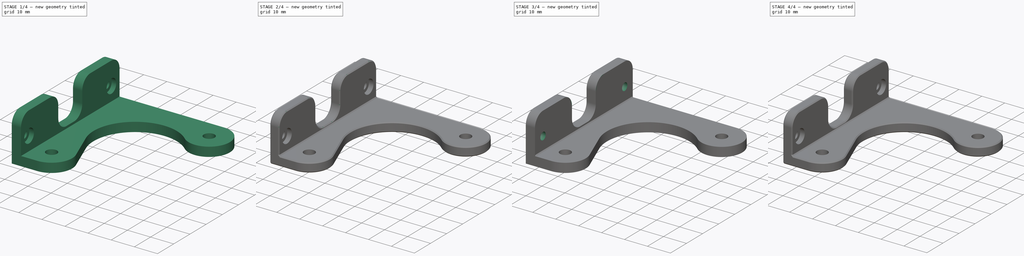
[diagram: build sequence overview — one tinted view per stage of 4, left to right]
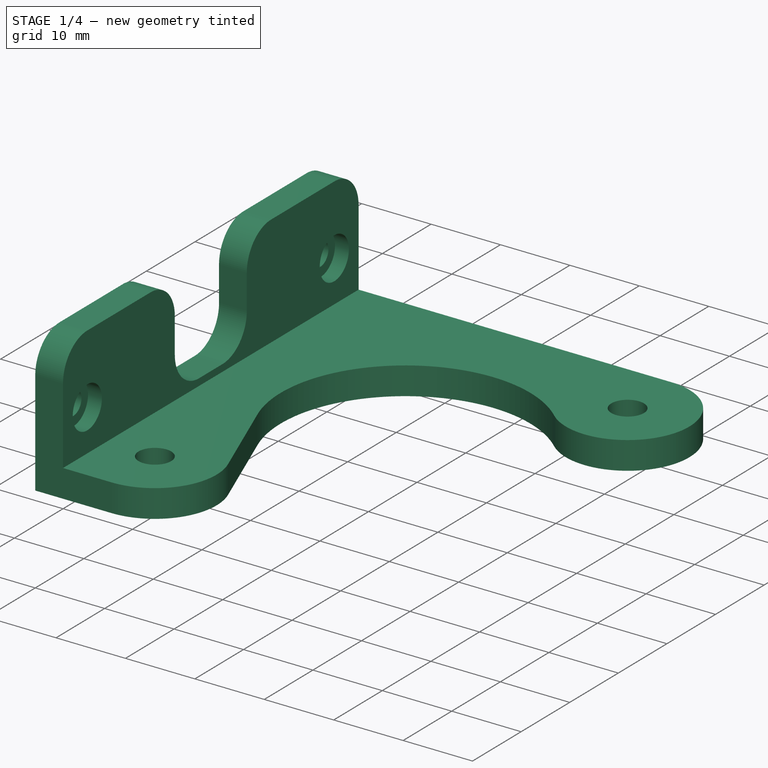
[diagram: stage 1 of 4 — iso view after this stage's code; geometry added in this stage tinted green]
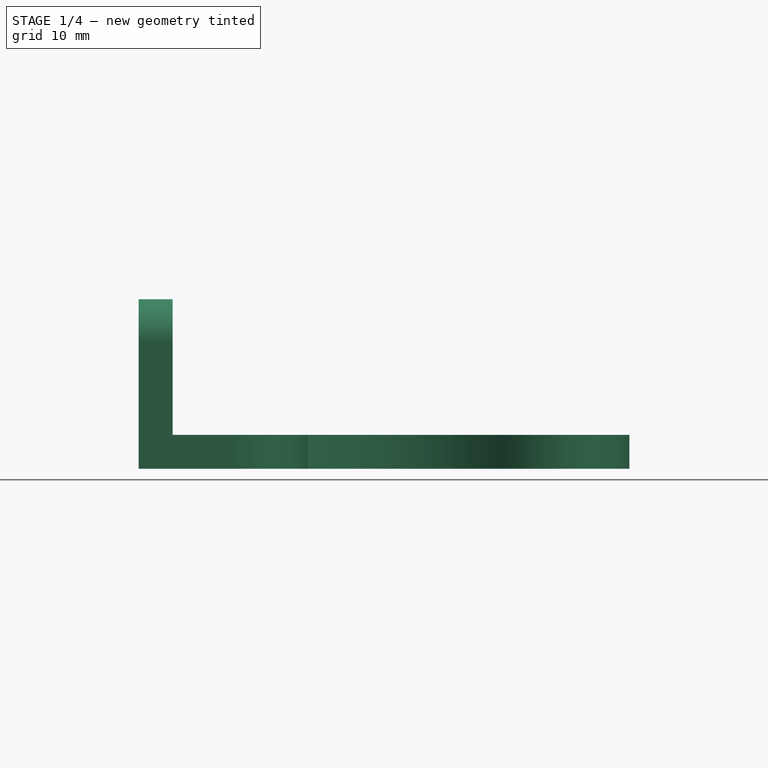
[diagram: stage 1 of 4 — front view after this stage's code; geometry added in this stage tinted green]
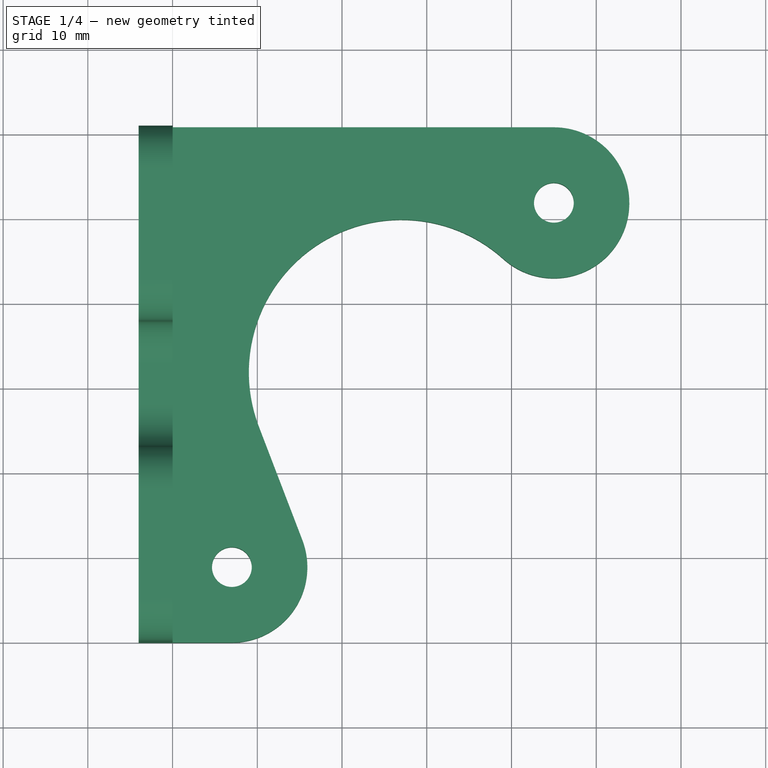
[diagram: stage 1 of 4 — top view after this stage's code; geometry added in this stage tinted green]
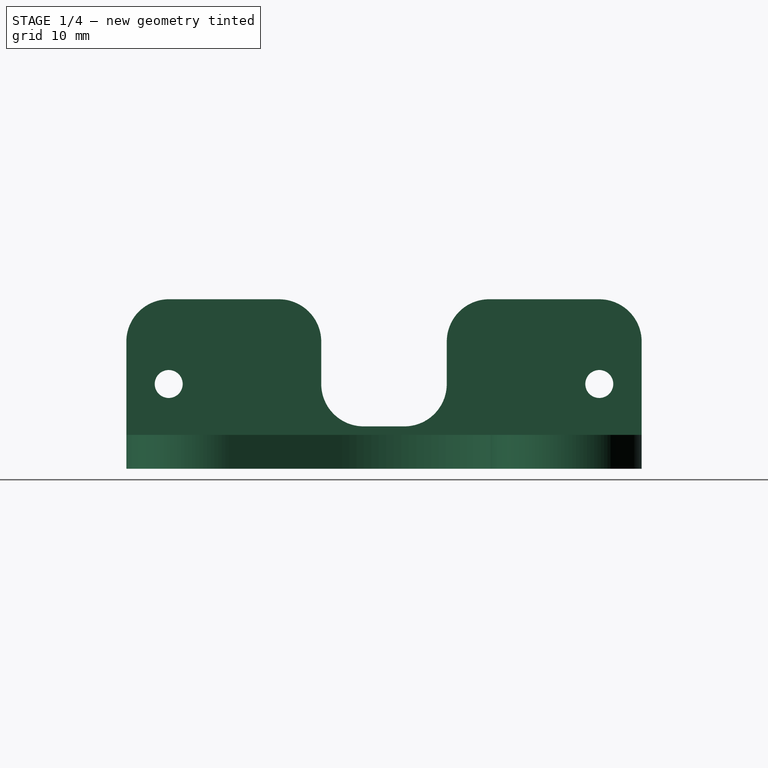
[diagram: stage 1 of 4 — right view after this stage's code; geometry added in this stage tinted green]
FCSTD DOCUMENT  (FreeCAD 1.1R20260414 (Git shallow))
Label: BedFanMount5020Blower
License: All rights reserved
LicenseURL: https://en.wikipedia.org/wiki/All_rights_reserved
objects: PartDesign::Pad×6, Sketcher::SketchObject×4, PartDesign::Pocket×4, PartDesign::Chamfer×4, App::Point×2, PartDesign::Body×2
note: 52 computed .brp shape members not serialized (recipe doc carries the construction recipe); baked Part::Feature solids carry a one-line shape summary decoded from their .brp

FEATURE [App::Point] Origin003
  Role = Origin
FEATURE [Sketcher::SketchObject] Sketch002  label="XYMasterSketch001"
  ArcFitTolerance = 1e-06
  AttachmentSupport = -> [Origin002]
  ExternalTypes = [0]
  FullyConstrained = true
  MakeInternals = false
  MapMode = 5
  _ExternalGeoVersion = 1
  sketch-geometry (9):
    g0: Circle CenterX=45 CenterY=51.9072 CenterZ=0 NormalX=0 NormalY=0 NormalZ=1 AngleXU=0 Radius=2.35
    g1: Circle CenterX=7 CenterY=8.90725 CenterZ=0 NormalX=0 NormalY=0 NormalZ=1 AngleXU=0 Radius=2.35
    g2: ArcOfCircle CenterX=45 CenterY=51.9072 CenterZ=0 NormalX=0 NormalY=0 NormalZ=1 AngleXU=0 Radius=8.90725 StartAngle=3.97957 EndAngle=7.85398
    g3: ArcOfCircle CenterX=7 CenterY=8.90725 CenterZ=0 NormalX=0 NormalY=0 NormalZ=1 AngleXU=0 Radius=8.90725 StartAngle=4.71239 EndAngle=6.64923
    g4: LineSegment StartX=45 StartY=60.8145 StartZ=0 EndX=0 EndY=60.8145 EndZ=0
    g5: LineSegment StartX=0 StartY=60.8145 StartZ=0 EndX=0 EndY=0 EndZ=0
    g6: ArcOfCircle CenterX=27 CenterY=31.9072 CenterZ=0 NormalX=0 NormalY=0 NormalZ=1 AngleXU=0 Radius=18 StartAngle=0.837981 EndAngle=3.50764
    g7: LineSegment StartX=10.1925 StartY=25.4646 StartZ=0 EndX=15.3172 EndY=12.0954 EndZ=0
    g8: LineSegment StartX=0 StartY=0 StartZ=0 EndX=7 EndY=0 EndZ=0
  constraints (22):
    c: Diameter(g0) = 4.7
    c: Equal(g0,g1)
    c: Coincident(g2,g0)
    c: Horizontal(g4)
    c: Coincident(g5,g4)
    c: Tangent(g4,g2) = -1.5708
    c: Radius(g6) = 18
    c: Tangent(g6,g2) = 1.5708
    c: Coincident(g3,g1)
    c: Tangent(g7,g6) = -1.5708
    c: Tangent(g7,g3) = 1.5708
    c: Equal(g2,g3)
    c: Coincident(g8,g5)
    c: Tangent(g8,g3) = -1.5708
    c: Vertical(g5)
    c: DistanceX(g6,g0) = 18
    c: DistanceY(g1,g6) = 23
    c: DistanceY(g6,g0) = 20
    c: DistanceX(g1,g6) = 20
    c: Horizontal(g8)
    c: Distance(g8,g8) = 7
    c: Coincident(g5,g-1)
FEATURE [PartDesign::Pad] Pad003  label="FanMountPad001"
  Direction = (0,0,1)
  Length = 4
  Length2 = 10
  Profile = -> Sketch002
  ReferenceAxis = -> Sketch002 [N_Axis]
  Refine = true
  SideType = 0
  Suppressed = false
  Type = 0
  Type2 = 0
FEATURE [Sketcher::SketchObject] Sketch003  label="YZMasterSketch001"
  ArcFitTolerance = 1e-06
  AttachmentSupport = -> [Origin002]
  ExternalGeometry = -> [Pad003]
  ExternalTypes = [0]
  FullyConstrained = true
  MakeInternals = false
  MapMode = 5
  Placement = pos=(0,0,0) rot=(0.57735,0.57735,0.57735;2.0944rad)
  _ExternalGeoVersion = 1
  sketch-geometry (33):
    g0: LineSegment StartX=0 StartY=0 StartZ=0 EndX=60.8145 EndY=0 EndZ=0
    g1: LineSegment StartX=60.8145 StartY=0 StartZ=0 EndX=60.8145 EndY=15 EndZ=0
    g2: LineSegment StartX=0 StartY=15 StartZ=0 EndX=0 EndY=0 EndZ=0
    g3: Circle CenterX=5 CenterY=10 CenterZ=0 NormalX=0 NormalY=0 NormalZ=1 AngleXU=0 Radius=1.65
    g4: LineSegment StartX=10 StartY=13.05 StartZ=0 EndX=10 EndY=6.95 EndZ=0
    g5: LineSegment StartX=10 StartY=6.95 StartZ=0 EndX=20 EndY=6.95 EndZ=0
    g6: LineSegment StartX=20 StartY=6.95 StartZ=0 EndX=20 EndY=13.05 EndZ=0
    g7: LineSegment StartX=20 StartY=13.05 StartZ=0 EndX=10 EndY=13.05 EndZ=0
    g8: LineSegment StartX=40.8145 StartY=13.05 StartZ=0 EndX=40.8145 EndY=6.95 EndZ=0
    g9: LineSegment StartX=40.8145 StartY=6.95 StartZ=0 EndX=50.8145 EndY=6.95 EndZ=0
    g10: LineSegment StartX=50.8145 StartY=6.95 StartZ=0 EndX=50.8145 EndY=13.05 EndZ=0
    g11: LineSegment StartX=50.8145 StartY=13.05 StartZ=0 EndX=40.8145 EndY=13.05 EndZ=0
    g12: Circle CenterX=5 CenterY=10 CenterZ=0 NormalX=0 NormalY=0 NormalZ=1 AngleXU=0 Radius=3
    g13: Circle CenterX=55.8145 CenterY=10 CenterZ=0 NormalX=0 NormalY=0 NormalZ=1 AngleXU=0 Radius=1.65
    g14: Circle CenterX=55.8145 CenterY=10 CenterZ=0 NormalX=0 NormalY=0 NormalZ=1 AngleXU=0 Radius=3
    g15: LineSegment [constr] StartX=5 StartY=10 StartZ=0 EndX=55.8145 EndY=10 EndZ=0
    g16: LineSegment StartX=5 StartY=20 StartZ=0 EndX=18 EndY=20 EndZ=0
    g17: LineSegment StartX=55.8145 StartY=20 StartZ=0 EndX=42.8145 EndY=20 EndZ=0
    g18: LineSegment StartX=37.8145 StartY=15 StartZ=0 EndX=37.8145 EndY=10 EndZ=0
    g19: LineSegment StartX=32.8145 StartY=5 StartZ=0 EndX=28 EndY=5 EndZ=0
    g20: LineSegment StartX=23 StartY=10 StartZ=0 EndX=23 EndY=15 EndZ=0
    g21: ArcOfCircle CenterX=5 CenterY=15 CenterZ=0 NormalX=0 NormalY=0 NormalZ=1 AngleXU=0 Radius=5 StartAngle=1.5708 EndAngle=3.14159
    g22: GeomPoint [constr] X=0 Y=20 Z=0
    g23: ArcOfCircle CenterX=18 CenterY=15 CenterZ=0 NormalX=0 NormalY=0 NormalZ=1 AngleXU=0 Radius=5 StartAngle=1e-16 EndAngle=1.5708
    g24: GeomPoint [constr] X=23 Y=20 Z=0
    g25: ArcOfCircle CenterX=42.8145 CenterY=15 CenterZ=0 NormalX=0 NormalY=0 NormalZ=1 AngleXU=0 Radius=5 StartAngle=1.5708 EndAngle=3.14159
    g26: GeomPoint [constr] X=37.8145 Y=20 Z=0
    g27: ArcOfCircle CenterX=55.8145 CenterY=15 CenterZ=0 NormalX=0 NormalY=0 NormalZ=1 AngleXU=0 Radius=5 StartAngle=2e-16 EndAngle=1.5708
    g28: GeomPoint [constr] X=60.8145 Y=20 Z=0
    g29: ArcOfCircle CenterX=28 CenterY=10 CenterZ=0 NormalX=0 NormalY=0 NormalZ=1 AngleXU=0 Radius=5 StartAngle=3.14159 EndAngle=4.71239
    g30: GeomPoint [constr] X=23 Y=5 Z=0
    g31: ArcOfCircle CenterX=32.8145 CenterY=10 CenterZ=0 NormalX=0 NormalY=0 NormalZ=1 AngleXU=0 Radius=5 StartAngle=4.71239 EndAngle=6.28319
    g32: GeomPoint [constr] X=37.8145 Y=5 Z=0
  constraints (81):
    c: Coincident(g0,g1)
    c: Coincident(g2,g0)
    c: Vertical(g1)
    c: Vertical(g2)
    c: Coincident(g0,g-1)
    c: DistanceY(g2,g22) = 20
    c: Coincident(g0,g-3)
    c: Diameter(g3) = 3.3
    c: Coincident(g4,g5)
    c: Coincident(g5,g6)
    c: Coincident(g6,g7)
    c: Coincident(g7,g4)
    c: Vertical(g6)
    c: Horizontal(g5)
    c: Horizontal(g7)
    c: Coincident(g8,g9)
    c: Coincident(g9,g10)
    c: Coincident(g10,g11)
    c: Coincident(g11,g8)
    c: Vertical(g8)
    c: Vertical(g10)
    c: Horizontal(g9)
    c: Horizontal(g11)
    c: Equal(g5,g9)
    c: Equal(g6,g8)
    c: Distance(g4,g4) = 6.1
    c: Horizontal(g6,g8)
    c: Coincident(g12,g3)
    c: Diameter(g12) = 6
    c: Coincident(g14,g13)
    c: Equal(g13,g3)
    c: Equal(g12,g14)
    c: DistanceX(g0,g3) = 5
    c: DistanceX(g13,g0) = 5
    c: Coincident(g15,g3)
    c: Coincident(g15,g13)
    c: Horizontal(g15)
    c: Distance(g3,g0) = 10
    c: Symmetric(g4,g4,g15)
    c: Distance(g3,g4) = 5
    c: DistanceX(g9,g13) = 5
    c: DistanceX(g7,g7) = 10
    c: Horizontal(g16)
    c: Horizontal(g17)
    c: Vertical(g18)
    c: Horizontal(g19)
    c: Vertical(g20)
    c: Distance(g0,g19) = 5
    c: Horizontal(g24,g26)
    c: PointOnObject(g22,g2)
    c: PointOnObject(g22,g16)
    c: Tangent(g2,g21) = -1.5708
    c: Tangent(g16,g21) = 1.5708
    c: PointOnObject(g24,g16)
    c: PointOnObject(g24,g20)
    c: Tangent(g16,g23) = 1.5708
    c: Tangent(g20,g23) = -1.5708
    c: PointOnObject(g26,g17)
    c: PointOnObject(g26,g18)
    c: Tangent(g17,g25) = -1.5708
    c: Tangent(g18,g25) = -1.5708
    c: PointOnObject(g28,g17)
    c: PointOnObject(g28,g1)
    c: Tangent(g17,g27) = -1.5708
    c: Tangent(g1,g27) = -1.5708
    c: Radius(g27) = 5
    c: Equal(g27,g25)
    c: Equal(g25,g23)
    c: Equal(g23,g21)
    c: Equal(g16,g17)
    c: PointOnObject(g30,g20)
    c: PointOnObject(g30,g19)
    c: Tangent(g20,g29) = 1.5708
    c: Tangent(g19,g29) = 1.5708
    c: PointOnObject(g32,g19)
    c: PointOnObject(g32,g18)
    c: Tangent(g19,g31) = 1.5708
    c: Tangent(g18,g31) = 1.5708
    c: Equal(g21,g29)
    c: Equal(g29,g31)
    c: DistanceX(g18,g8) = 3
FEATURE [PartDesign::Pad] Pad004  label="ExtrusionMountPad001"
  BaseFeature = -> Pad003
  Direction = (1,0,0)
  Length = 4
  Length2 = 10
  Profile = -> Sketch003 [Edge3,Edge2,Edge1,Edge14,Edge13,Edge12,Edge11,Edge10,Edge9,Edge8,Edge7,Edge6,Edge5,Edge4]
  ReferenceAxis = -> Sketch003 [N_Axis]
  Refine = true
  Reversed = true
  SideType = 0
  Suppressed = false
  Type = 0
  Type2 = 0
FEATURE [PartDesign::Pocket] Pocket002  label="MountHolesPocket001"
  BaseFeature = -> Pad004
  Direction = (-1,0,0)
  Length = 5
  Length2 = 5
  Profile = -> Sketch003 [Edge15,Edge25]
  ReferenceAxis = -> Sketch003 [N_Axis]
  Refine = true
  SideType = 0
  Suppressed = false
  Type = 1
  Type2 = 0
FEATURE [PartDesign::Pocket] Pocket003  label="MountHolesCounterborePocket001"
  BaseFeature = -> Pocket002
  Direction = (-1,0,0)
  Length = 2
  Length2 = 5
  Profile = -> Sketch003 [Edge24,Edge26]
  ReferenceAxis = -> Sketch003 [N_Axis]
  Refine = true
  SideType = 0
  Suppressed = false
  Type = 0
  Type2 = 0
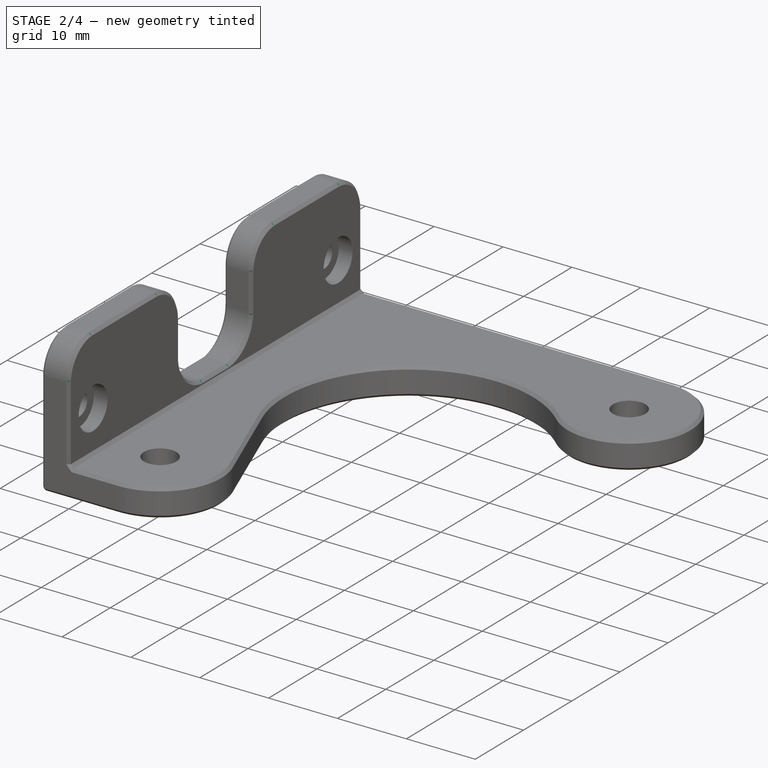
[diagram: stage 2 of 4 — iso view after this stage's code; geometry added in this stage tinted green]
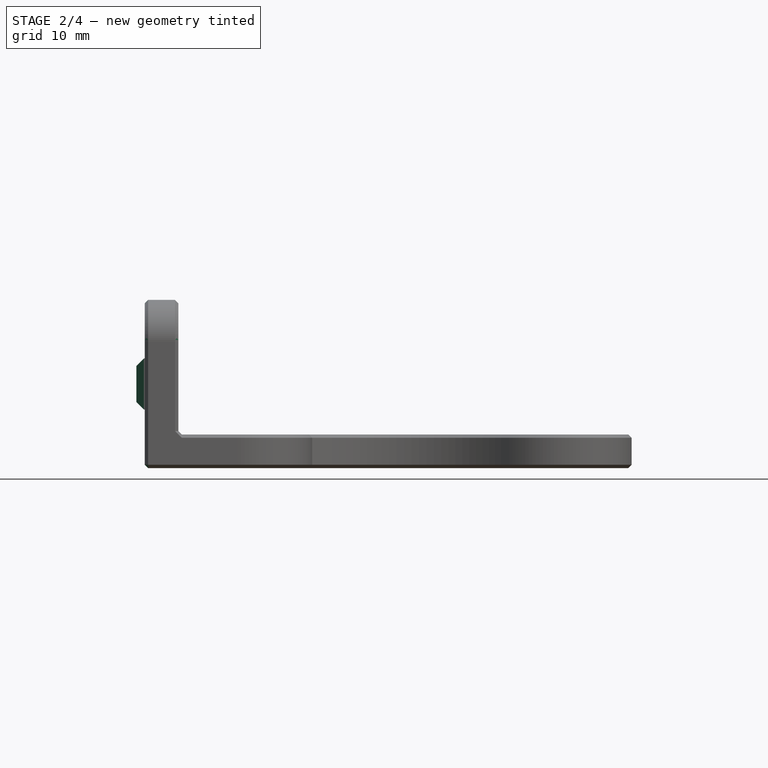
[diagram: stage 2 of 4 — front view after this stage's code; geometry added in this stage tinted green]
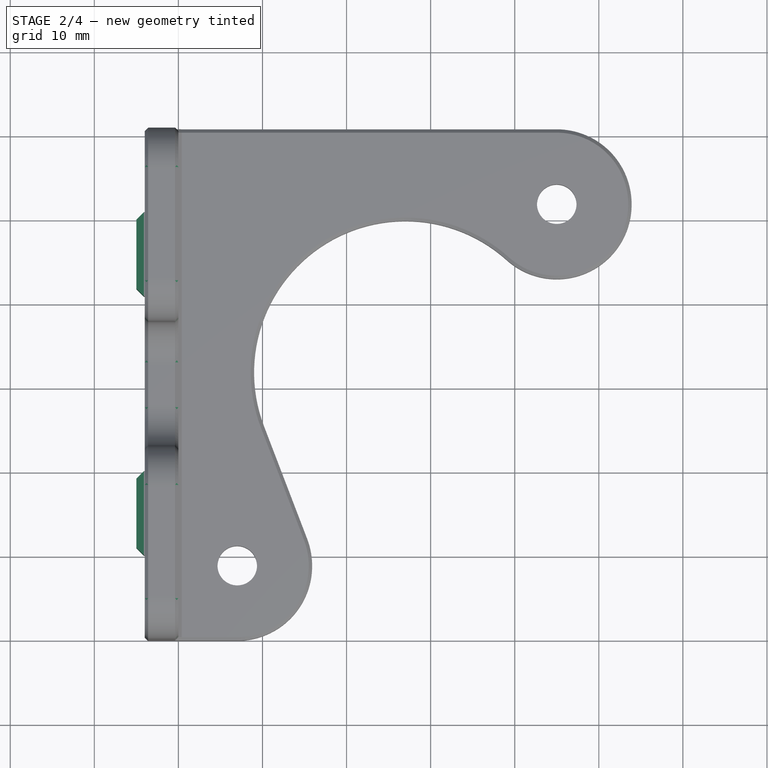
[diagram: stage 2 of 4 — top view after this stage's code; geometry added in this stage tinted green]
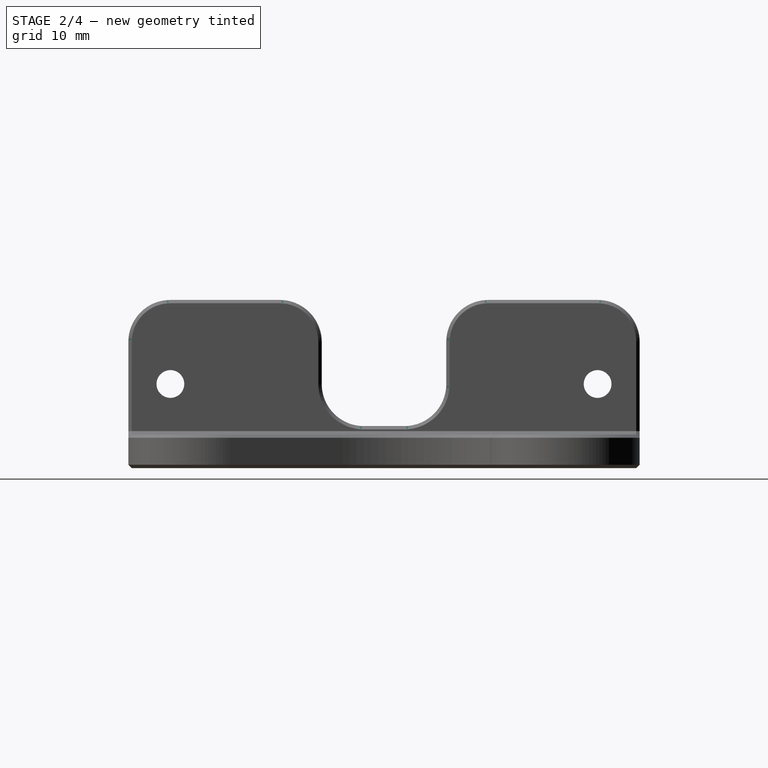
[diagram: stage 2 of 4 — right view after this stage's code; geometry added in this stage tinted green]
FEATURE [PartDesign::Pad] Pad005  label="VSlotAlignmentPad001"
  BaseFeature = -> Pocket003
  Direction = (1,0,0)
  Length = 5
  Length2 = 10
  Profile = -> Sketch003 [Edge19,Edge18,Edge17,Edge16,Edge23,Edge22,Edge21,Edge20]
  ReferenceAxis = -> Sketch003 [N_Axis]
  Refine = true
  Reversed = true
  SideType = 0
  Suppressed = false
  Type = 0
  Type2 = 0
FEATURE [PartDesign::Chamfer] Chamfer001  label="VSlotAlignmentChamfer001"
  Angle = 45
  Base = -> Pad005 [Edge93,Edge96,Edge98,Edge99,Edge84,Edge87,Edge89,Edge90]
  BaseFeature = -> Pad005
  ChamferType = 0
  FlipDirection = false
  Refine = true
  Size = 0.9
  Size2 = 1
  SupportTransform = false
  Suppressed = false
  UseAllEdges = false
FEATURE [PartDesign::Body] Body  label="VSlot"
  AllowCompound = true
  Group = -> [Sketch,Pad,Sketch001,Pad001,Pocket,Pocket001,Pad002,Chamfer,Chamfer002]
  Origin = -> Origin
  Tip = -> Chamfer002
FEATURE [PartDesign::Chamfer] Chamfer003  label="FinishingChamfer001"
  Angle = 45
  Base = -> Chamfer001 [Edge46,Edge11,Edge47,Edge48,Edge56,Edge51,Edge101,Edge12]
  BaseFeature = -> Chamfer001
  ChamferType = 0
  FlipDirection = false
  Refine = true
  Size = 0.4
  Size2 = 1
  SupportTransform = false
  Suppressed = false
  UseAllEdges = false
FEATURE [PartDesign::Body] Body001  label="Misumi"
  AllowCompound = true
  Group = -> [Sketch002,Pad003,Sketch003,Pad004,Pocket002,Pocket003,Pad005,Chamfer001,Chamfer003]
  Origin = -> Origin002
  Placement = pos=(0,65,0) rot=(0,0,1;0rad)
  Tip = -> Chamfer003
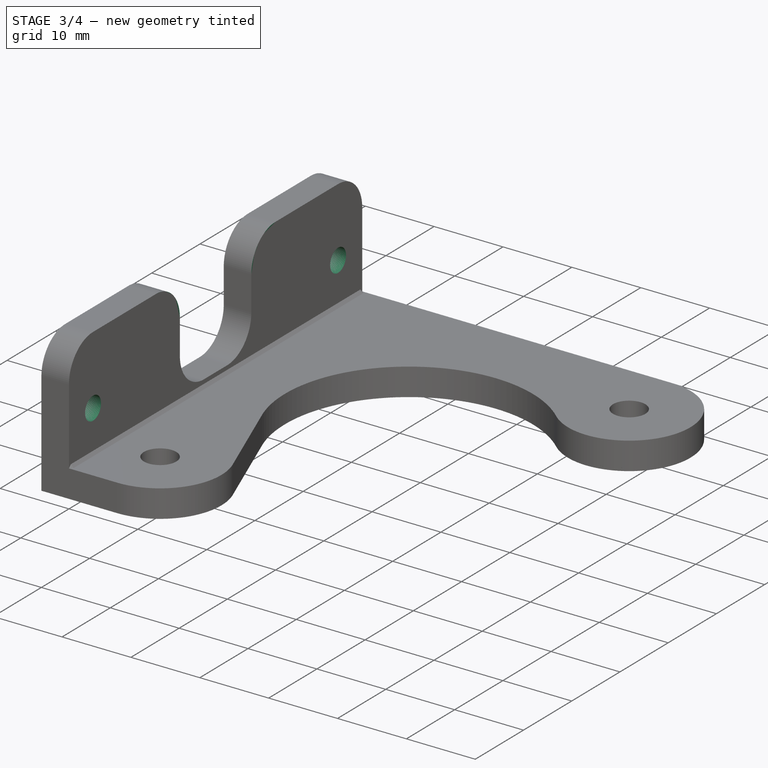
[diagram: stage 3 of 4 — iso view after this stage's code; geometry added in this stage tinted green]
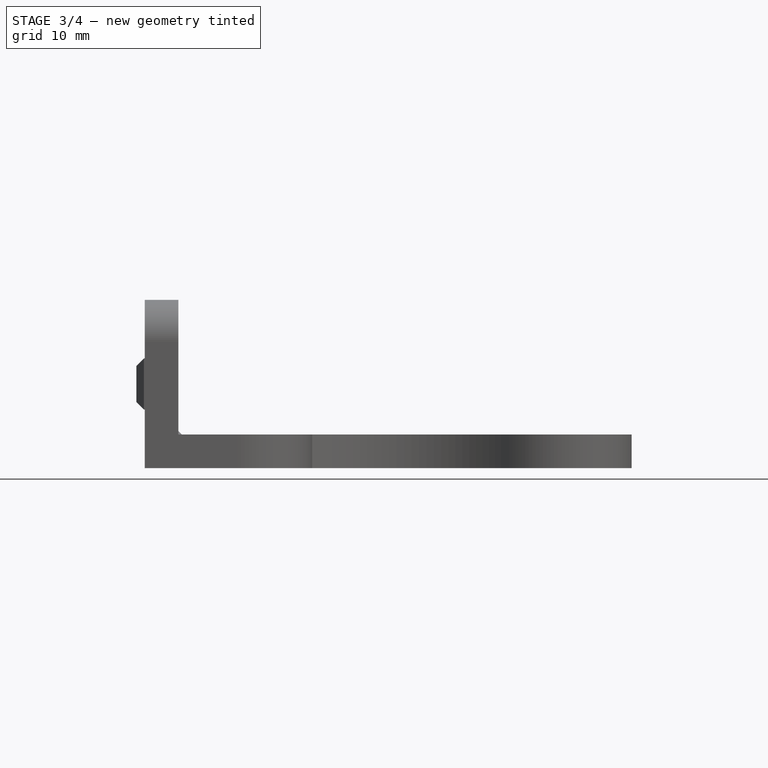
[diagram: stage 3 of 4 — front view after this stage's code; geometry added in this stage tinted green]
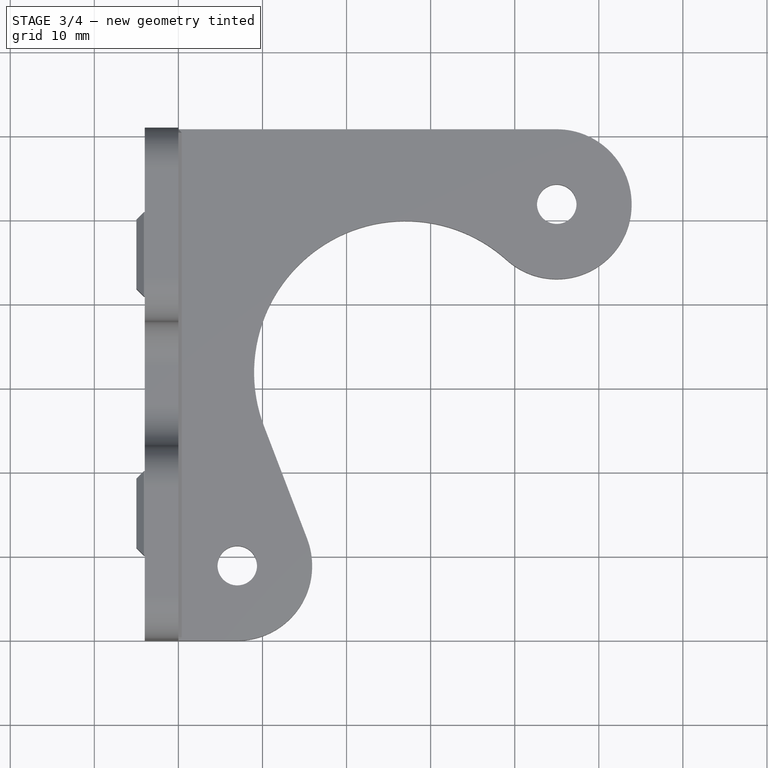
[diagram: stage 3 of 4 — top view after this stage's code; geometry added in this stage tinted green]
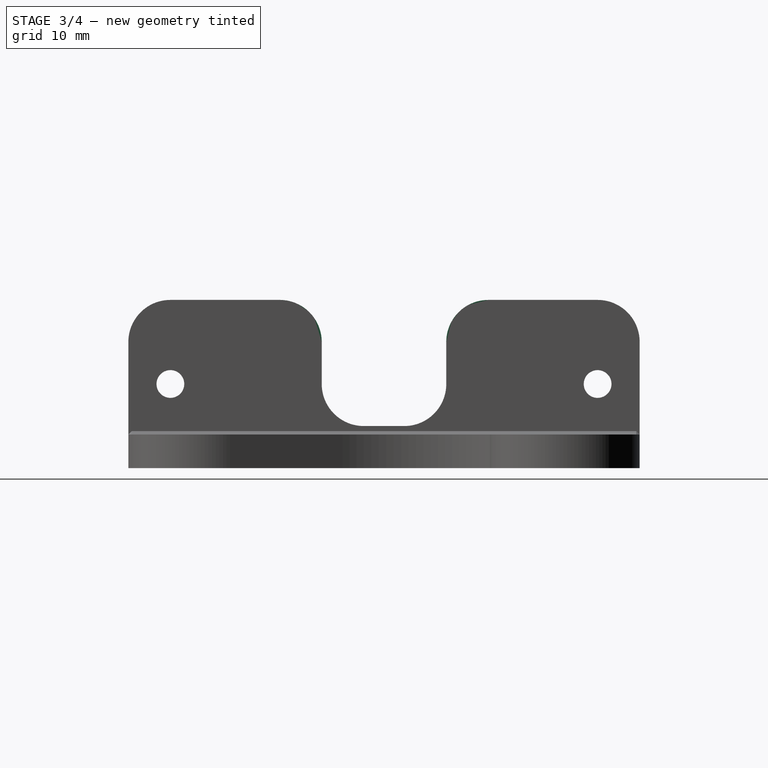
[diagram: stage 3 of 4 — right view after this stage's code; geometry added in this stage tinted green]
FEATURE [App::Point] Origin001
  Role = Origin
FEATURE [Sketcher::SketchObject] Sketch  label="XYMasterSketch"
  ArcFitTolerance = 1e-06
  AttachmentSupport = -> [Origin]
  ExternalTypes = [0]
  FullyConstrained = true
  MakeInternals = false
  MapMode = 5
  _ExternalGeoVersion = 1
  sketch-geometry (9):
    g0: Circle CenterX=45 CenterY=51.9072 CenterZ=0 NormalX=0 NormalY=0 NormalZ=1 AngleXU=0 Radius=2.35
    g1: Circle CenterX=7 CenterY=8.90725 CenterZ=0 NormalX=0 NormalY=0 NormalZ=1 AngleXU=0 Radius=2.35
    g2: ArcOfCircle CenterX=45 CenterY=51.9072 CenterZ=0 NormalX=0 NormalY=0 NormalZ=1 AngleXU=0 Radius=8.90725 StartAngle=3.97957 EndAngle=7.85398
    g3: ArcOfCircle CenterX=7 CenterY=8.90725 CenterZ=0 NormalX=0 NormalY=0 NormalZ=1 AngleXU=0 Radius=8.90725 StartAngle=4.71239 EndAngle=6.64923
    g4: LineSegment StartX=45 StartY=60.8145 StartZ=0 EndX=0 EndY=60.8145 EndZ=0
    g5: LineSegment StartX=0 StartY=60.8145 StartZ=0 EndX=0 EndY=0 EndZ=0
    g6: ArcOfCircle CenterX=27 CenterY=31.9072 CenterZ=0 NormalX=0 NormalY=0 NormalZ=1 AngleXU=0 Radius=18 StartAngle=0.837981 EndAngle=3.50764
    g7: LineSegment StartX=10.1925 StartY=25.4646 StartZ=0 EndX=15.3172 EndY=12.0954 EndZ=0
    g8: LineSegment StartX=0 StartY=0 StartZ=0 EndX=7 EndY=0 EndZ=0
  constraints (22):
    c: Diameter(g0) = 4.7
    c: Equal(g0,g1)
    c: Coincident(g2,g0)
    c: Horizontal(g4)
    c: Coincident(g5,g4)
    c: Tangent(g4,g2) = -1.5708
    c: Radius(g6) = 18
    c: Tangent(g6,g2) = 1.5708
    c: Coincident(g3,g1)
    c: Tangent(g7,g6) = -1.5708
    c: Tangent(g7,g3) = 1.5708
    c: Equal(g2,g3)
    c: Coincident(g8,g5)
    c: Tangent(g8,g3) = -1.5708
    c: Vertical(g5)
    c: DistanceX(g6,g0) = 18
    c: DistanceY(g1,g6) = 23
    c: DistanceY(g6,g0) = 20
    c: DistanceX(g1,g6) = 20
    c: Horizontal(g8)
    c: Distance(g8,g8) = 7
    c: Coincident(g5,g-1)
FEATURE [PartDesign::Pad] Pad  label="FanMountPad"
  Direction = (0,0,1)
  Length = 4
  Length2 = 10
  Profile = -> Sketch
  ReferenceAxis = -> Sketch [N_Axis]
  Refine = true
  SideType = 0
  Suppressed = false
  Type = 0
  Type2 = 0
FEATURE [Sketcher::SketchObject] Sketch001  label="YZMasterSketch"
  ArcFitTolerance = 1e-06
  AttachmentSupport = -> [Origin]
  ExternalGeometry = -> [Pad]
  ExternalTypes = [0]
  FullyConstrained = true
  MakeInternals = false
  MapMode = 5
  Placement = pos=(0,0,0) rot=(0.57735,0.57735,0.57735;2.0944rad)
  _ExternalGeoVersion = 1
  sketch-geometry (33):
    g0: LineSegment StartX=0 StartY=0 StartZ=0 EndX=60.8145 EndY=0 EndZ=0
    g1: LineSegment StartX=60.8145 StartY=0 StartZ=0 EndX=60.8145 EndY=15 EndZ=0
    g2: LineSegment StartX=0 StartY=15 StartZ=0 EndX=0 EndY=0 EndZ=0
    g3: Circle CenterX=5 CenterY=10 CenterZ=0 NormalX=0 NormalY=0 NormalZ=1 AngleXU=0 Radius=1.65
    g4: LineSegment StartX=10 StartY=14.2 StartZ=0 EndX=10 EndY=5.8 EndZ=0
    g5: LineSegment StartX=10 StartY=5.8 StartZ=0 EndX=20 EndY=5.8 EndZ=0
    g6: LineSegment StartX=20 StartY=5.8 StartZ=0 EndX=20 EndY=14.2 EndZ=0
    g7: LineSegment StartX=20 StartY=14.2 StartZ=0 EndX=10 EndY=14.2 EndZ=0
    g8: LineSegment StartX=40.8145 StartY=14.2 StartZ=0 EndX=40.8145 EndY=5.8 EndZ=0
    g9: LineSegment StartX=40.8145 StartY=5.8 StartZ=0 EndX=50.8145 EndY=5.8 EndZ=0
    g10: LineSegment StartX=50.8145 StartY=5.8 StartZ=0 EndX=50.8145 EndY=14.2 EndZ=0
    g11: LineSegment StartX=50.8145 StartY=14.2 StartZ=0 EndX=40.8145 EndY=14.2 EndZ=0
    g12: Circle CenterX=5 CenterY=10 CenterZ=0 NormalX=0 NormalY=0 NormalZ=1 AngleXU=0 Radius=3
    g13: Circle CenterX=55.8145 CenterY=10 CenterZ=0 NormalX=0 NormalY=0 NormalZ=1 AngleXU=0 Radius=1.65
    g14: Circle CenterX=55.8145 CenterY=10 CenterZ=0 NormalX=0 NormalY=0 NormalZ=1 AngleXU=0 Radius=3
    g15: LineSegment [constr] StartX=5 StartY=10 StartZ=0 EndX=55.8145 EndY=10 EndZ=0
    g16: LineSegment StartX=5 StartY=20 StartZ=0 EndX=18 EndY=20 EndZ=0
    g17: LineSegment StartX=55.8145 StartY=20 StartZ=0 EndX=42.8145 EndY=20 EndZ=0
    g18: LineSegment StartX=37.8145 StartY=15 StartZ=0 EndX=37.8145 EndY=10 EndZ=0
    g19: LineSegment StartX=32.8145 StartY=5 StartZ=0 EndX=28 EndY=5 EndZ=0
    g20: LineSegment StartX=23 StartY=10 StartZ=0 EndX=23 EndY=15 EndZ=0
    g21: ArcOfCircle CenterX=5 CenterY=15 CenterZ=0 NormalX=0 NormalY=0 NormalZ=1 AngleXU=0 Radius=5 StartAngle=1.5708 EndAngle=3.14159
    g22: GeomPoint [constr] X=0 Y=20 Z=0
    g23: ArcOfCircle CenterX=18 CenterY=15 CenterZ=0 NormalX=0 NormalY=0 NormalZ=1 AngleXU=0 Radius=5 StartAngle=1e-16 EndAngle=1.5708
    g24: GeomPoint [constr] X=23 Y=20 Z=0
    g25: ArcOfCircle CenterX=42.8145 CenterY=15 CenterZ=0 NormalX=0 NormalY=0 NormalZ=1 AngleXU=0 Radius=5 StartAngle=1.5708 EndAngle=3.14159
    g26: GeomPoint [constr] X=37.8145 Y=20 Z=0
    g27: ArcOfCircle CenterX=55.8145 CenterY=15 CenterZ=0 NormalX=0 NormalY=0 NormalZ=1 AngleXU=0 Radius=5 StartAngle=1e-16 EndAngle=1.5708
    g28: GeomPoint [constr] X=60.8145 Y=20 Z=0
    g29: ArcOfCircle CenterX=28 CenterY=10 CenterZ=0 NormalX=0 NormalY=0 NormalZ=1 AngleXU=0 Radius=5 StartAngle=3.14159 EndAngle=4.71239
    g30: GeomPoint [constr] X=23 Y=5 Z=0
    g31: ArcOfCircle CenterX=32.8145 CenterY=10 CenterZ=0 NormalX=0 NormalY=0 NormalZ=1 AngleXU=0 Radius=5 StartAngle=4.71239 EndAngle=6.28319
    g32: GeomPoint [constr] X=37.8145 Y=5 Z=0
  constraints (81):
    c: Coincident(g0,g1)
    c: Coincident(g2,g0)
    c: Vertical(g1)
    c: Vertical(g2)
    c: Coincident(g0,g-1)
    c: DistanceY(g2,g22) = 20
    c: Coincident(g0,g-3)
    c: Diameter(g3) = 3.3
    c: Coincident(g4,g5)
    c: Coincident(g5,g6)
    c: Coincident(g6,g7)
    c: Coincident(g7,g4)
    c: Vertical(g6)
    c: Horizontal(g5)
    c: Horizontal(g7)
    c: Coincident(g8,g9)
    c: Coincident(g9,g10)
    c: Coincident(g10,g11)
    c: Coincident(g11,g8)
    c: Vertical(g8)
    c: Vertical(g10)
    c: Horizontal(g9)
    c: Horizontal(g11)
    c: Equal(g5,g9)
    c: Equal(g6,g8)
    c: Distance(g4,g4) = 8.4
    c: Horizontal(g6,g8)
    c: Coincident(g12,g3)
    c: Diameter(g12) = 6
    c: Coincident(g14,g13)
    c: Equal(g13,g3)
    c: Equal(g12,g14)
    c: DistanceX(g0,g3) = 5
    c: DistanceX(g13,g0) = 5
    c: Coincident(g15,g3)
    c: Coincident(g15,g13)
    c: Horizontal(g15)
    c: Distance(g3,g0) = 10
    c: Symmetric(g4,g4,g15)
    c: Distance(g3,g4) = 5
    c: DistanceX(g9,g13) = 5
    c: DistanceX(g7,g7) = 10
    c: Horizontal(g16)
    c: Horizontal(g17)
    c: Vertical(g18)
    c: Horizontal(g19)
    c: Vertical(g20)
    c: Distance(g0,g19) = 5
    c: Horizontal(g24,g26)
    c: PointOnObject(g22,g2)
    c: PointOnObject(g22,g16)
    c: Tangent(g2,g21) = -1.5708
    c: Tangent(g16,g21) = 1.5708
    c: PointOnObject(g24,g16)
    c: PointOnObject(g24,g20)
    c: Tangent(g16,g23) = 1.5708
    c: Tangent(g20,g23) = -1.5708
    c: PointOnObject(g26,g17)
    c: PointOnObject(g26,g18)
    c: Tangent(g17,g25) = -1.5708
    c: Tangent(g18,g25) = -1.5708
    c: PointOnObject(g28,g17)
    c: PointOnObject(g28,g1)
    c: Tangent(g17,g27) = -1.5708
    c: Tangent(g1,g27) = -1.5708
    c: Radius(g27) = 5
    c: Equal(g27,g25)
    c: Equal(g25,g23)
    c: Equal(g23,g21)
    c: Equal(g16,g17)
    c: PointOnObject(g30,g20)
    c: PointOnObject(g30,g19)
    c: Tangent(g20,g29) = 1.5708
    c: Tangent(g19,g29) = 1.5708
    c: PointOnObject(g32,g19)
    c: PointOnObject(g32,g18)
    c: Tangent(g19,g31) = 1.5708
    c: Tangent(g18,g31) = 1.5708
    c: Equal(g21,g29)
    c: Equal(g29,g31)
    c: DistanceX(g18,g8) = 3
FEATURE [PartDesign::Pad] Pad001  label="ExtrusionMountPad"
  BaseFeature = -> Pad
  Direction = (1,0,0)
  Length = 4
  Length2 = 10
  Profile = -> Sketch001 [Edge3,Edge2,Edge1,Edge14,Edge13,Edge12,Edge11,Edge10,Edge9,Edge8,Edge7,Edge6,Edge5,Edge4]
  ReferenceAxis = -> Sketch001 [N_Axis]
  Refine = true
  Reversed = true
  SideType = 0
  Suppressed = false
  Type = 0
  Type2 = 0
FEATURE [PartDesign::Pocket] Pocket  label="MountHolesPocket"
  BaseFeature = -> Pad001
  Direction = (-1,0,0)
  Length = 5
  Length2 = 5
  Profile = -> Sketch001 [Edge15,Edge25]
  ReferenceAxis = -> Sketch001 [N_Axis]
  Refine = true
  SideType = 0
  Suppressed = false
  Type = 1
  Type2 = 0
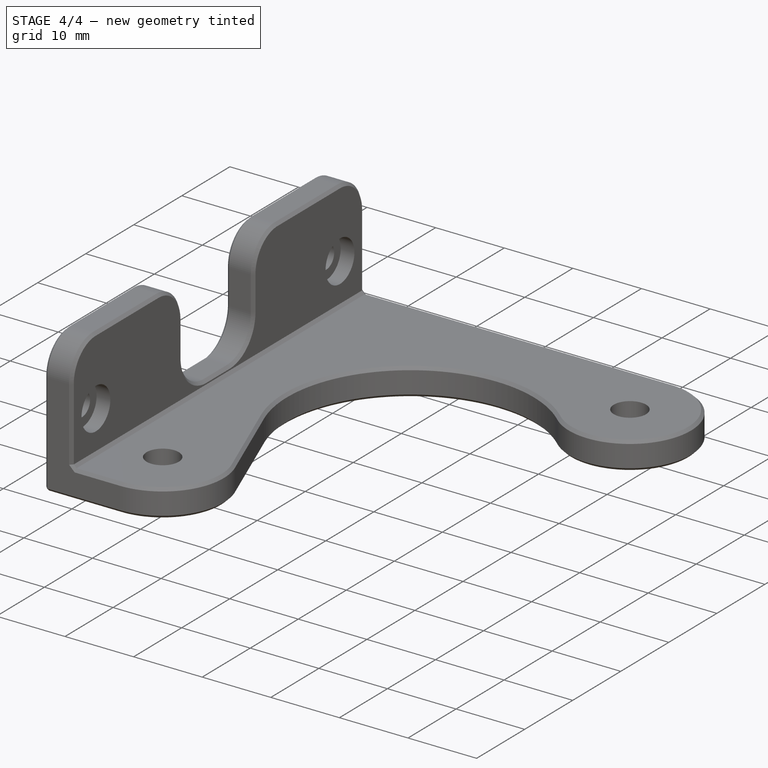
[diagram: stage 4 of 4 — iso view after this stage's code; geometry added in this stage tinted green]
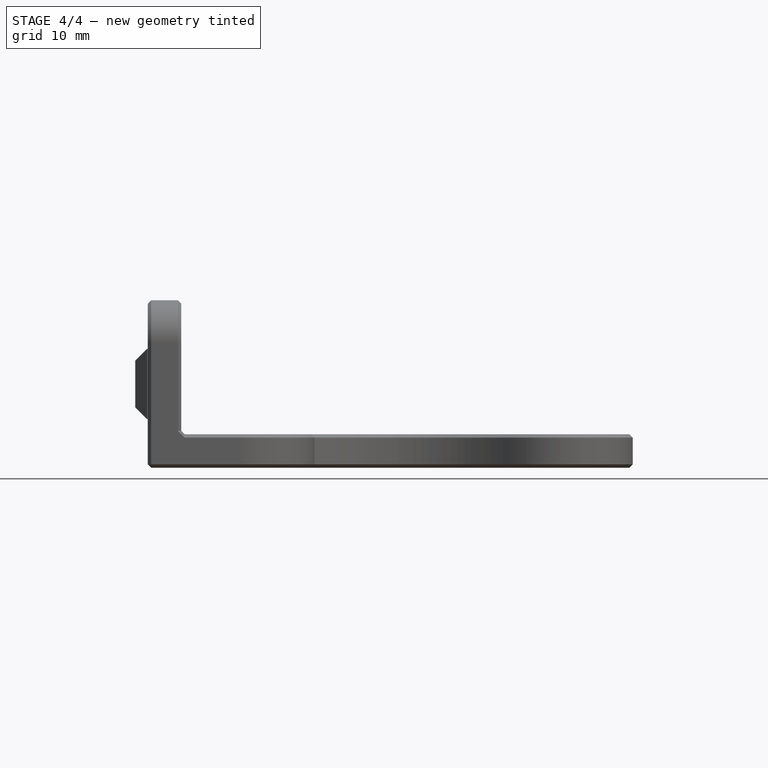
[diagram: stage 4 of 4 — front view after this stage's code; geometry added in this stage tinted green]
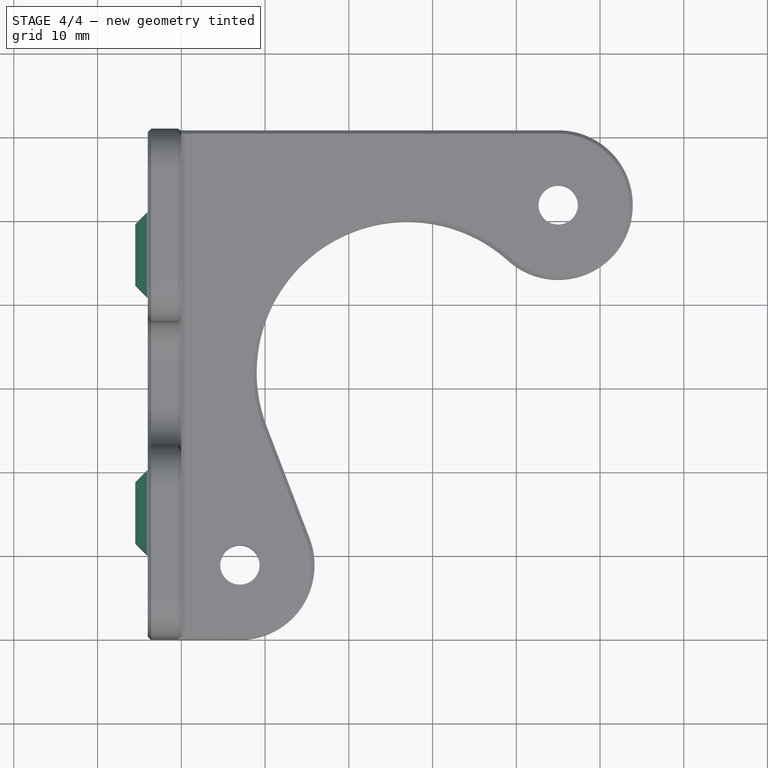
[diagram: stage 4 of 4 — top view after this stage's code; geometry added in this stage tinted green]
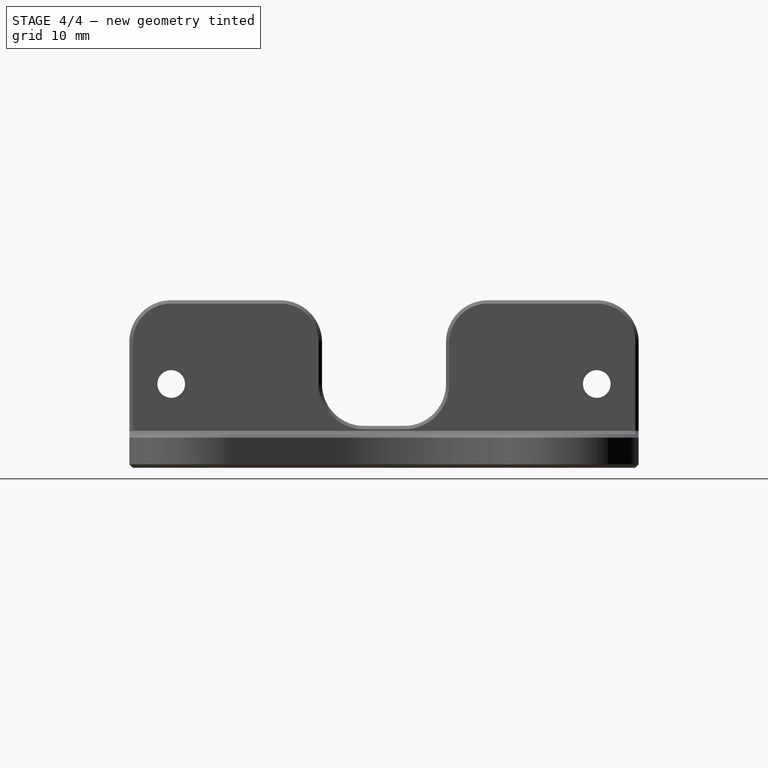
[diagram: stage 4 of 4 — right view after this stage's code; geometry added in this stage tinted green]
FEATURE [PartDesign::Pocket] Pocket001  label="MountHolesCounterborePocket"
  BaseFeature = -> Pocket
  Direction = (-1,0,0)
  Length = 2
  Length2 = 5
  Profile = -> Sketch001 [Edge24,Edge26]
  ReferenceAxis = -> Sketch001 [N_Axis]
  Refine = true
  SideType = 0
  Suppressed = false
  Type = 0
  Type2 = 0
FEATURE [PartDesign::Pad] Pad002  label="VSlotAlignmentPad"
  BaseFeature = -> Pocket001
  Direction = (1,0,0)
  Length = 5.5
  Length2 = 10
  Profile = -> Sketch001 [Edge19,Edge18,Edge17,Edge16,Edge23,Edge22,Edge21,Edge20]
  ReferenceAxis = -> Sketch001 [N_Axis]
  Refine = true
  Reversed = true
  SideType = 0
  Suppressed = false
  Type = 0
  Type2 = 0
FEATURE [PartDesign::Chamfer] Chamfer  label="VSlotAlignmentChamfer"
  Angle = 45
  Base = -> Pad002 [Edge92,Edge95,Edge97,Edge98,Edge84,Edge87,Edge89,Edge90]
  BaseFeature = -> Pad002
  ChamferType = 0
  FlipDirection = false
  Refine = true
  Size = 1.4
  Size2 = 1
  SupportTransform = false
  Suppressed = false
  UseAllEdges = false
FEATURE [PartDesign::Chamfer] Chamfer002  label="FinishingChamfer"
  Angle = 45
  Base = -> Chamfer [Edge46,Edge11,Edge47,Edge48,Edge56,Edge100,Edge98,Edge51,Edge101,Edge12]
  BaseFeature = -> Chamfer
  ChamferType = 0
  FlipDirection = false
  Refine = true
  Size = 0.4
  Size2 = 1
  SupportTransform = false
  Suppressed = false
  UseAllEdges = false
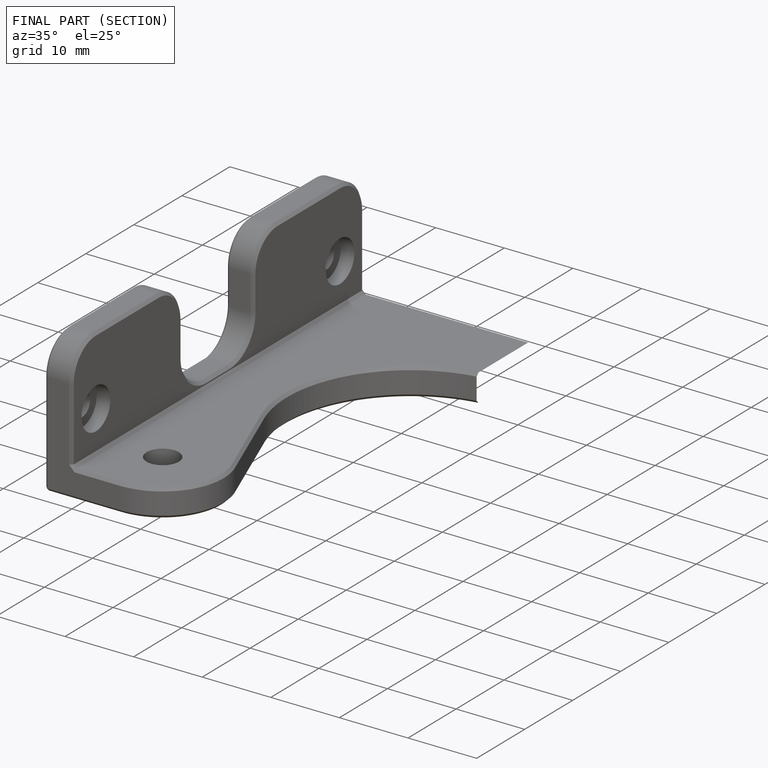
[diagram: finished part — half-section view (interior)]
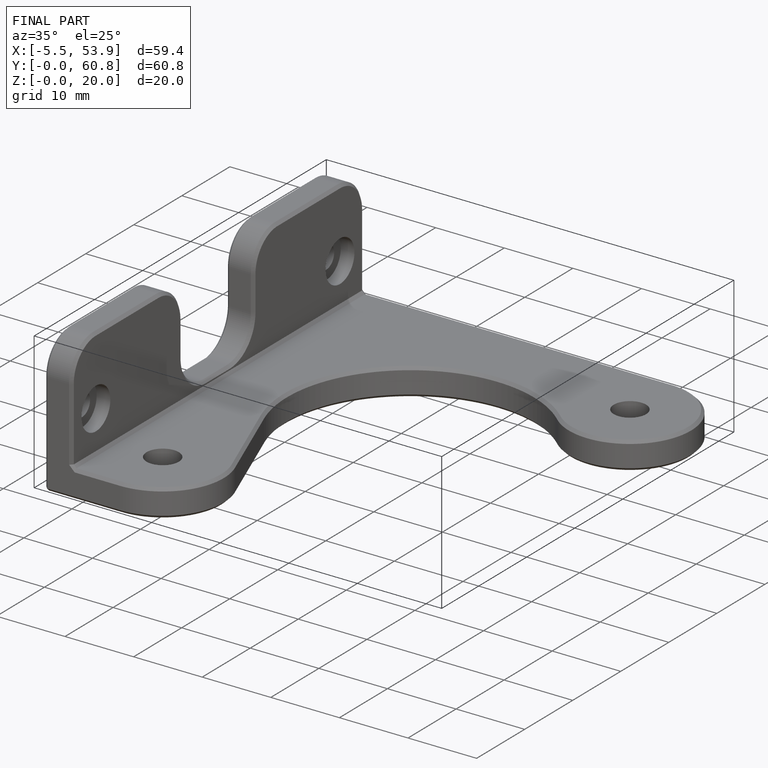
[diagram: finished part — iso view with bounding-box wireframe]
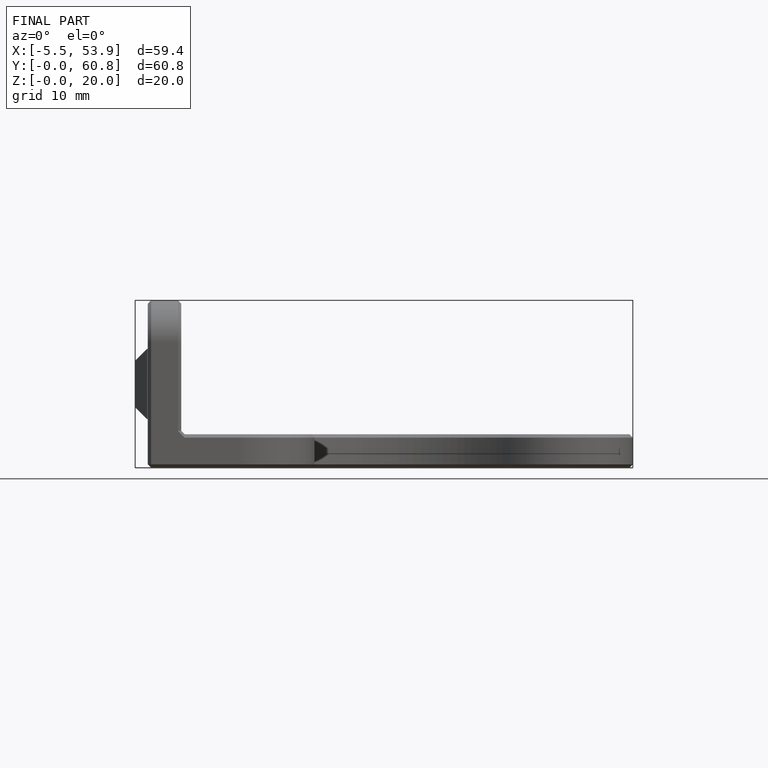
[diagram: finished part — front view with bounding-box wireframe]
